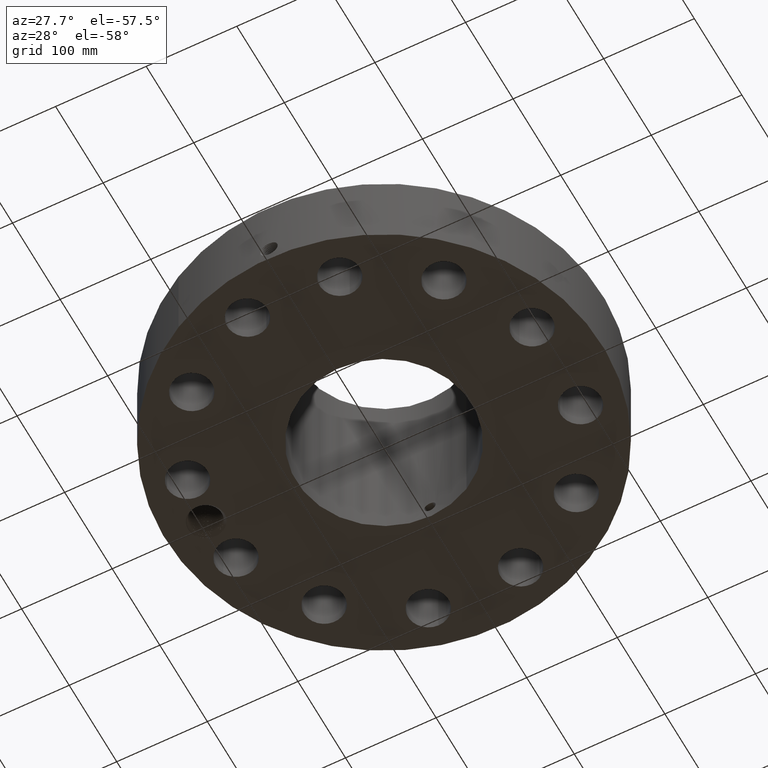
[diagram: clean part render]
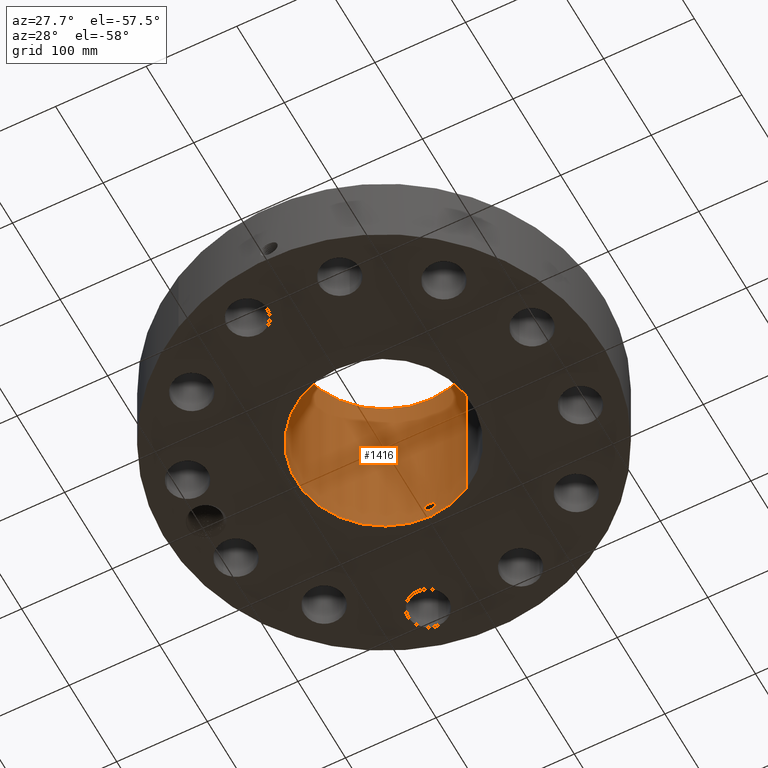
[diagram: same view with one face highlighted and labeled with its STEP entity id]
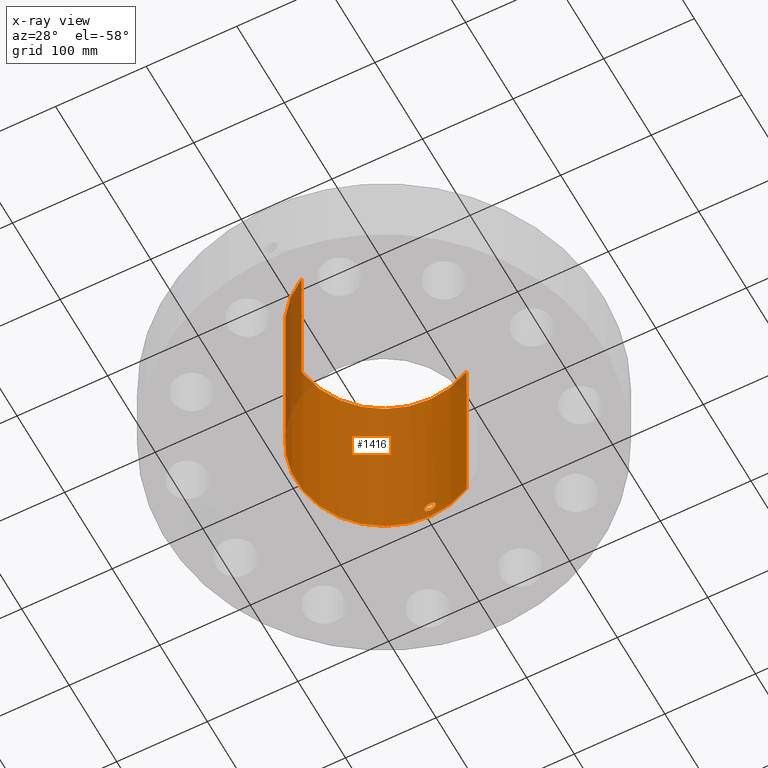
[diagram: x-ray of the same camera — body ghosted, the highlighted face saturated]
A machine part, auxiliary view. The second image highlights one B-rep face of the part: STEP entity #1416.
The next image is the same camera in x-ray: the body ghosted, the highlighted face saturated — about 7% of this face is hidden behind the body in this view.
In plain terms, the highlighted cylindrical surface (partial cylindrical patch) has radius 96.8375 mm, axis along (0, 0, -1).
Its self-contained STEP definition (entity closure, byte-faithful):
#271=AXIS2_PLACEMENT_3D('Circle Axis2P3D',#269,#270,$) ;
#1293=AXIS2_PLACEMENT_3D('Cylinder Axis2P3D',#1290,#1291,#1292) ;
#1365=AXIS2_PLACEMENT_3D('Circle Axis2P3D',#1363,#1364,$) ;
#264=CARTESIAN_POINT('Vertex',(1.82780986594,3.34578351722,0.250000000001)) ;
#266=CARTESIAN_POINT('Vertex',(-1.82780986594,-3.34578351722,0.250000000001)) ;
#269=CARTESIAN_POINT('Axis2P3D Location',(0.,0.,0.250000000001)) ;
#1290=CARTESIAN_POINT('Axis2P3D Location',(0.,0.,4.44000000002)) ;
#1299=CARTESIAN_POINT('Vertex',(1.82780986594,3.34578351722,8.63000000003)) ;
#1301=CARTESIAN_POINT('Vertex',(-1.82780986594,-3.34578351722,8.63000000003)) ;
#1304=CARTESIAN_POINT('Line Origine',(1.82780986594,3.34578351722,4.44000000002)) ;
#1309=CARTESIAN_POINT('Line Origine',(-1.82780986594,-3.34578351722,4.44000000002)) ;
#1363=CARTESIAN_POINT('Axis2P3D Location',(0.,0.,8.63000000003)) ;
#1375=CARTESIAN_POINT('Control Point',(0.219395640473,3.8061820507,1.05985638466)) ;
#1376=CARTESIAN_POINT('Control Point',(0.20692195585,3.80690105783,1.0826893112)) ;
#1377=CARTESIAN_POINT('Control Point',(0.191479535029,3.80773992011,1.10389661406)) ;
#1378=CARTESIAN_POINT('Control Point',(0.173348524053,3.80863375974,1.12296652279)) ;
#1379=CARTESIAN_POINT('Control Point',(0.112159828067,3.81121821337,1.17243271452)) ;
#1380=CARTESIAN_POINT('Control Point',(0.0350222215006,3.81289731306,1.19596401402)) ;
#1381=CARTESIAN_POINT('Control Point',(-0.0195176223999,3.81302341806,1.19761227106)) ;
#1382=CARTESIAN_POINT('Control Point',(-0.124090328399,3.81117723847,1.17249188386)) ;
#1383=CARTESIAN_POINT('Control Point',(-0.203127633423,3.80735227264,1.09963010128)) ;
#1384=CARTESIAN_POINT('Control Point',(-0.232118051319,3.80546721722,1.05344350047)) ;
#1385=CARTESIAN_POINT('Control Point',(-0.255824896338,3.80391270875,0.975276311646)) ;
#1386=CARTESIAN_POINT('Control Point',(-0.24831037646,3.80440501816,0.895860179597)) ;
#1387=CARTESIAN_POINT('Control Point',(-0.242075942947,3.80481956846,0.8692534445)) ;
#1388=CARTESIAN_POINT('Control Point',(-0.232332436063,3.80543634896,0.843824260837)) ;
#1389=CARTESIAN_POINT('Control Point',(-0.219395640473,3.8061820507,0.820143615352)) ;
#1390=CARTESIAN_POINT('Vertex',(0.219395640473,3.8061820507,1.05985638466)) ;
#1392=CARTESIAN_POINT('Vertex',(-0.219395640473,3.8061820507,0.820143615352)) ;
#1396=CARTESIAN_POINT('Control Point',(-0.219395640473,3.8061820507,0.820143615352)) ;
#1397=CARTESIAN_POINT('Control Point',(-0.20692195585,3.80690105783,0.797310688805)) ;
#1398=CARTESIAN_POINT('Control Point',(-0.19147953503,3.80773992011,0.776103385951)) ;
#1399=CARTESIAN_POINT('Control Point',(-0.173348524053,3.80863375974,0.757033477222)) ;
#1400=CARTESIAN_POINT('Control Point',(-0.112159828071,3.81121821337,0.707567285491)) ;
#1401=CARTESIAN_POINT('Control Point',(-0.0350222215117,3.81289731306,0.684035985986)) ;
#1402=CARTESIAN_POINT('Control Point',(0.0195176224084,3.81302341806,0.68238772895)) ;
#1403=CARTESIAN_POINT('Control Point',(0.124090328383,3.81117723847,0.707508116148)) ;
#1404=CARTESIAN_POINT('Control Point',(0.203127633395,3.80735227264,0.780369898701)) ;
#1405=CARTESIAN_POINT('Control Point',(0.232118051329,3.80546721722,0.826556499568)) ;
#1406=CARTESIAN_POINT('Control Point',(0.255824896326,3.80391270875,0.904723688346)) ;
#1407=CARTESIAN_POINT('Control Point',(0.248310376466,3.80440501816,0.984139820344)) ;
#1408=CARTESIAN_POINT('Control Point',(0.242075942923,3.80481956846,1.01074655557)) ;
#1409=CARTESIAN_POINT('Control Point',(0.232332436048,3.80543634897,1.0361757392)) ;
#1410=CARTESIAN_POINT('Control Point',(0.219395640473,3.8061820507,1.05985638466)) ;
#270=DIRECTION('Axis2P3D Direction',(0.,0.,-0.0393700787402)) ;
#1291=DIRECTION('Axis2P3D Direction',(0.,0.,-0.0393700787402)) ;
#1292=DIRECTION('Axis2P3D XDirection',(-0.0188750212049,-0.0345504945626,0.)) ;
#1305=DIRECTION('Vector Direction',(0.,0.,-0.0393700787402)) ;
#1310=DIRECTION('Vector Direction',(0.,0.,-0.0393700787402)) ;
#1364=DIRECTION('Axis2P3D Direction',(0.,0.,-0.0393700787402)) ;
#1306=VECTOR('Line Direction',#1305,0.0393700787402) ;
#1311=VECTOR('Line Direction',#1310,0.0393700787402) ;
#1369=ORIENTED_EDGE('',*,*,#1367,.F.) ;
#1370=ORIENTED_EDGE('',*,*,#1313,.T.) ;
#1371=ORIENTED_EDGE('',*,*,#273,.T.) ;
#1372=ORIENTED_EDGE('',*,*,#1308,.F.) ;
#1413=ORIENTED_EDGE('',*,*,#1394,.F.) ;
#1414=ORIENTED_EDGE('',*,*,#1411,.F.) ;
#1415=FACE_BOUND('',#1412,.T.) ;
#1416=ADVANCED_FACE('PartBody',(#1373,#1415),#1294,.F.) ;
#1374=B_SPLINE_CURVE_WITH_KNOTS('',5,(#1375,#1376,#1377,#1378,#1379,#1380,#1381,#1382,#1383,#1384,#1385,#1386,#1387,#1388,#1389),.UNSPECIFIED.,.F.,.U.,(6,3,3,3,6),(0.,4.6747467041,14.021281026,23.3712223225,28.2195285263),.UNSPECIFIED.) ;
#1395=B_SPLINE_CURVE_WITH_KNOTS('',5,(#1396,#1397,#1398,#1399,#1400,#1401,#1402,#1403,#1404,#1405,#1406,#1407,#1408,#1409,#1410),.UNSPECIFIED.,.F.,.U.,(6,3,3,3,6),(0.,4.674746704,14.0212810251,23.3712223182,28.2195285162),.UNSPECIFIED.) ;
#272=CIRCLE('generated circle',#271,3.81250000002) ;
#1366=CIRCLE('generated circle',#1365,3.81250000002) ;
#1294=CYLINDRICAL_SURFACE('generated cylinder',#1293,3.81250000002) ;
#273=EDGE_CURVE('',#267,#265,#272,.T.) ;
#1308=EDGE_CURVE('',#1300,#265,#1307,.T.) ;
#1313=EDGE_CURVE('',#1302,#267,#1312,.T.) ;
#1367=EDGE_CURVE('',#1302,#1300,#1366,.T.) ;
#1394=EDGE_CURVE('',#1391,#1393,#1374,.T.) ;
#1411=EDGE_CURVE('',#1393,#1391,#1395,.T.) ;
#1368=EDGE_LOOP('',(#1369,#1370,#1371,#1372)) ;
#1412=EDGE_LOOP('',(#1413,#1414)) ;
#1373=FACE_OUTER_BOUND('',#1368,.T.) ;
#1307=LINE('Line',#1304,#1306) ;
#1312=LINE('Line',#1309,#1311) ;
#265=VERTEX_POINT('',#264) ;
#267=VERTEX_POINT('',#266) ;
#1300=VERTEX_POINT('',#1299) ;
#1302=VERTEX_POINT('',#1301) ;
#1391=VERTEX_POINT('',#1390) ;
#1393=VERTEX_POINT('',#1392) ;